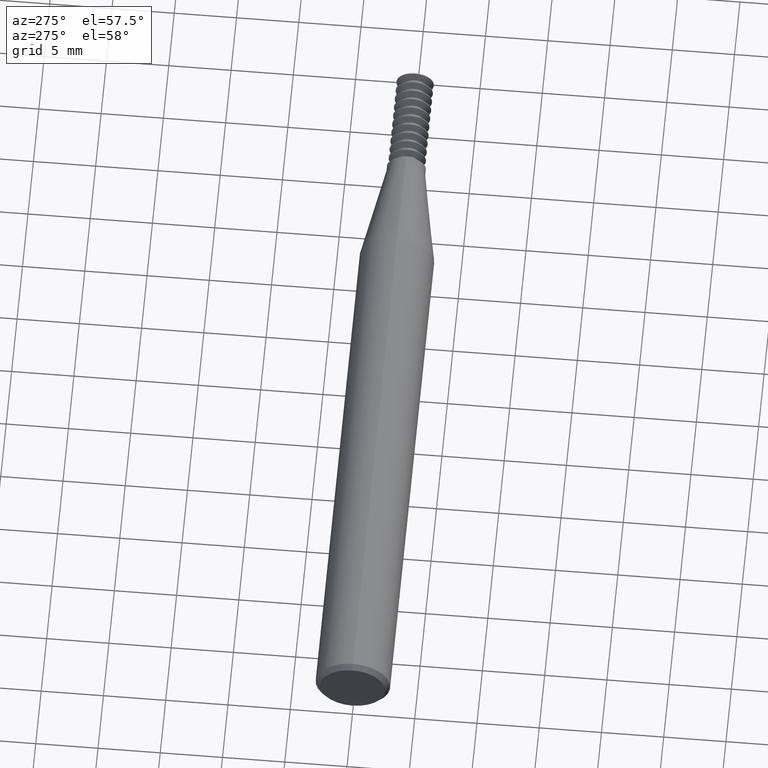
[diagram: clean part render]
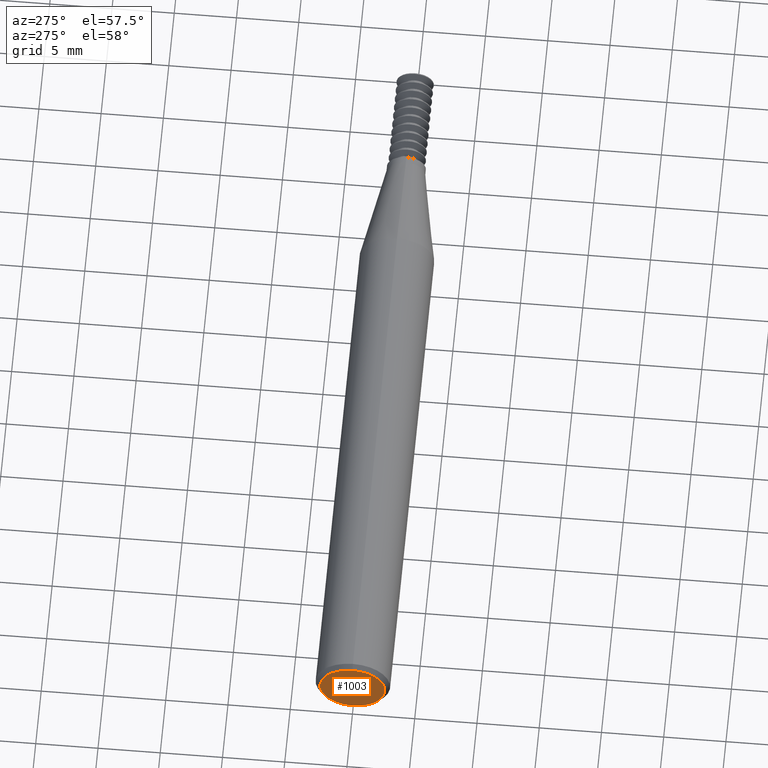
[diagram: same view with one face highlighted and labeled with its STEP entity id]
A machine part, auxiliary view. The second image highlights one B-rep face of the part: STEP entity #1003.
In plain terms, the highlighted planar face has unit normal (-1, 0, 0).
Its self-contained STEP definition (entity closure, byte-faithful):
#74 = CARTESIAN_POINT ( 'NONE',  ( 0.0000000000000000000, 0.0000000000000000000, 0.0000000000000000000 ) ) ;
#198 = AXIS2_PLACEMENT_3D ( 'NONE', #74, #2111, #1922 ) ;
#220 = PLANE ( 'NONE',  #1619 ) ;
#254 = CARTESIAN_POINT ( 'NONE',  ( 0.0000000000000000000, 0.0000000000000000000, -0.1029999999999996890 ) ) ;
#464 = ORIENTED_EDGE ( 'NONE', *, *, #1088, .T. ) ;
#545 = VERTEX_POINT ( 'NONE', #1286 ) ;
#569 = CARTESIAN_POINT ( 'NONE',  ( 0.0000000000000000000, 0.0000000000000000000, 0.0000000000000000000 ) ) ;
#579 = CIRCLE ( 'NONE', #2178, 0.1029999999999996890 ) ;
#605 = VERTEX_POINT ( 'NONE', #254 ) ;
#763 = CIRCLE ( 'NONE', #198, 0.1029999999999996890 ) ;
#1003 = ADVANCED_FACE ( 'NONE', ( #1992 ), #220, .T. ) ;
#1088 = EDGE_CURVE ( 'NONE', #545, #605, #763, .T. ) ;
#1108 = DIRECTION ( 'NONE',  ( -1.000000000000000000, 0.0000000000000000000, 0.0000000000000000000 ) ) ;
#1181 = ORIENTED_EDGE ( 'NONE', *, *, #1997, .T. ) ;
#1267 = CARTESIAN_POINT ( 'NONE',  ( 0.0000000000000000000, 0.0000000000000000000, 0.0000000000000000000 ) ) ;
#1286 = CARTESIAN_POINT ( 'NONE',  ( 0.0000000000000000000, 1.353234713057823376E-17, 0.1029999999999996890 ) ) ;
#1292 = DIRECTION ( 'NONE',  ( 0.0000000000000000000, 0.0000000000000000000, 1.000000000000000000 ) ) ;
#1466 = DIRECTION ( 'NONE',  ( 0.0000000000000000000, 0.0000000000000000000, 1.000000000000000000 ) ) ;
#1511 = DIRECTION ( 'NONE',  ( -1.000000000000000000, 0.0000000000000000000, 0.0000000000000000000 ) ) ;
#1525 = EDGE_LOOP ( 'NONE', ( #1181, #464 ) ) ;
#1619 = AXIS2_PLACEMENT_3D ( 'NONE', #569, #1511, #1292 ) ;
#1922 = DIRECTION ( 'NONE',  ( 0.0000000000000000000, 0.0000000000000000000, 1.000000000000000000 ) ) ;
#1992 = FACE_OUTER_BOUND ( 'NONE', #1525, .T. ) ;
#1997 = EDGE_CURVE ( 'NONE', #605, #545, #579, .T. ) ;
#2111 = DIRECTION ( 'NONE',  ( -1.000000000000000000, 0.0000000000000000000, 0.0000000000000000000 ) ) ;
#2178 = AXIS2_PLACEMENT_3D ( 'NONE', #1267, #1108, #1466 ) ;